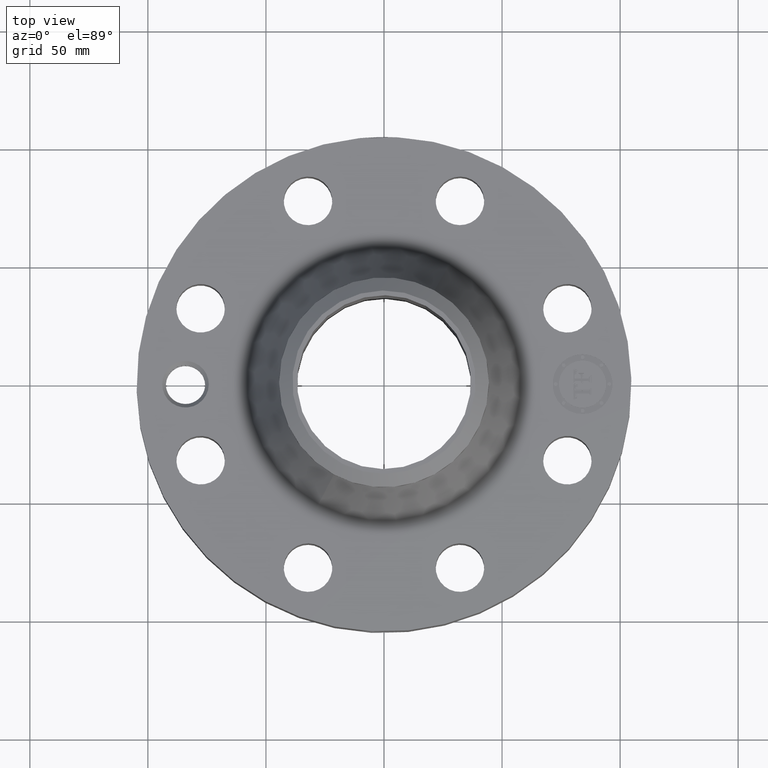
[diagram: clean part render]
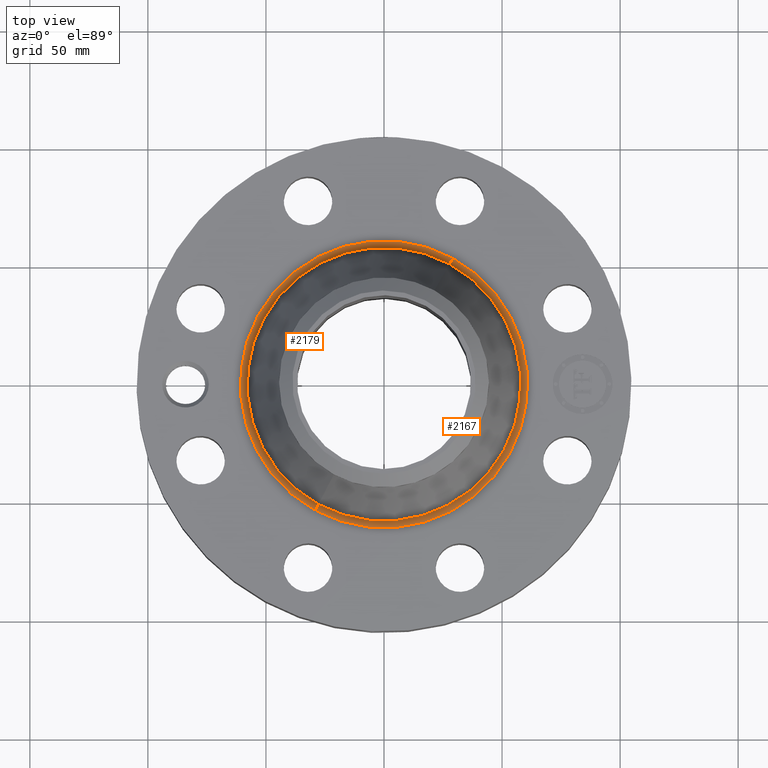
[diagram: same view with one multi-face feature highlighted, each face labeled with its STEP entity id]
A machine part, top view. The highlighted faces form ONE feature: a constant-radius fillet chain: 2 tangent blend faces with common blend radius 3.048 mm. The faces share edges in the B-rep.
Their STEP definitions:
[1] entity #2167 (Torus):
#568=AXIS2_PLACEMENT_3D('Circle Axis2P3D',#566,#567,$) ;
#2140=AXIS2_PLACEMENT_3D('Torus Axis2P3D',#2137,#2138,#2139) ;
#2144=AXIS2_PLACEMENT_3D('Circle Axis2P3D',#2142,#2143,$) ;
#2151=AXIS2_PLACEMENT_3D('Circle Axis2P3D',#2149,#2150,$) ;
#2158=AXIS2_PLACEMENT_3D('Circle Axis2P3D',#2156,#2157,$) ;
#561=CARTESIAN_POINT('Vertex',(-1.1482394859,-2.10183828052,1.56000000001)) ;
#563=CARTESIAN_POINT('Vertex',(1.1482394859,2.10183828052,1.56000000001)) ;
#566=CARTESIAN_POINT('Axis2P3D Location',(0.,0.,1.56000000001)) ;
#2137=CARTESIAN_POINT('Axis2P3D Location',(0.,0.,1.68000000001)) ;
#2142=CARTESIAN_POINT('Axis2P3D Location',(1.1482394859,2.10183828052,1.68000000001)) ;
#2146=CARTESIAN_POINT('Vertex',(1.09396064071,2.00248152086,1.64022511755)) ;
#2149=CARTESIAN_POINT('Axis2P3D Location',(0.,0.,1.64022511755)) ;
#2153=CARTESIAN_POINT('Vertex',(-1.09396064071,-2.00248152086,1.64022511755)) ;
#2156=CARTESIAN_POINT('Axis2P3D Location',(-1.1482394859,-2.10183828052,1.68000000001)) ;
#567=DIRECTION('Axis2P3D Direction',(0.,0.,-0.0393700787402)) ;
#2138=DIRECTION('Axis2P3D Direction',(0.,0.,-0.0393700787402)) ;
#2139=DIRECTION('Axis2P3D XDirection',(-0.0188750212049,-0.0345504945626,0.)) ;
#2143=DIRECTION('Axis2P3D Direction',(-0.0345504945626,0.0188750212049,0.)) ;
#2150=DIRECTION('Axis2P3D Direction',(0.,0.,-0.0393700787402)) ;
#2157=DIRECTION('Axis2P3D Direction',(0.0345504945626,-0.0188750212049,0.)) ;
#2162=ORIENTED_EDGE('',*,*,#570,.F.) ;
#2163=ORIENTED_EDGE('',*,*,#2148,.T.) ;
#2164=ORIENTED_EDGE('',*,*,#2155,.T.) ;
#2165=ORIENTED_EDGE('',*,*,#2160,.F.) ;
#2167=ADVANCED_FACE('PartBody',(#2166),#2141,.F.) ;
#569=CIRCLE('generated circle',#568,2.39503195688) ;
#2145=CIRCLE('generated circle',#2144,0.12) ;
#2152=CIRCLE('generated circle',#2151,2.2818155326) ;
#2159=CIRCLE('generated circle',#2158,0.12) ;
#2141=TOROIDAL_SURFACE('homeo Torus',#2140,2.39503195688,0.12) ;
#570=EDGE_CURVE('',#564,#562,#569,.T.) ;
#2148=EDGE_CURVE('',#564,#2147,#2145,.T.) ;
#2155=EDGE_CURVE('',#2147,#2154,#2152,.T.) ;
#2160=EDGE_CURVE('',#562,#2154,#2159,.T.) ;
#2161=EDGE_LOOP('',(#2162,#2163,#2164,#2165)) ;
#2166=FACE_OUTER_BOUND('',#2161,.T.) ;
#562=VERTEX_POINT('',#561) ;
#564=VERTEX_POINT('',#563) ;
#2147=VERTEX_POINT('',#2146) ;
#2154=VERTEX_POINT('',#2153) ;
[2] entity #2179 (Torus):
#559=AXIS2_PLACEMENT_3D('Circle Axis2P3D',#557,#558,$) ;
#2140=AXIS2_PLACEMENT_3D('Torus Axis2P3D',#2137,#2138,#2139) ;
#2144=AXIS2_PLACEMENT_3D('Circle Axis2P3D',#2142,#2143,$) ;
#2158=AXIS2_PLACEMENT_3D('Circle Axis2P3D',#2156,#2157,$) ;
#2170=AXIS2_PLACEMENT_3D('Circle Axis2P3D',#2168,#2169,$) ;
#557=CARTESIAN_POINT('Axis2P3D Location',(0.,0.,1.56000000001)) ;
#561=CARTESIAN_POINT('Vertex',(-1.1482394859,-2.10183828052,1.56000000001)) ;
#563=CARTESIAN_POINT('Vertex',(1.1482394859,2.10183828052,1.56000000001)) ;
#2137=CARTESIAN_POINT('Axis2P3D Location',(0.,0.,1.68000000001)) ;
#2142=CARTESIAN_POINT('Axis2P3D Location',(1.1482394859,2.10183828052,1.68000000001)) ;
#2146=CARTESIAN_POINT('Vertex',(1.09396064071,2.00248152086,1.64022511755)) ;
#2153=CARTESIAN_POINT('Vertex',(-1.09396064071,-2.00248152086,1.64022511755)) ;
#2156=CARTESIAN_POINT('Axis2P3D Location',(-1.1482394859,-2.10183828052,1.68000000001)) ;
#2168=CARTESIAN_POINT('Axis2P3D Location',(0.,0.,1.64022511755)) ;
#558=DIRECTION('Axis2P3D Direction',(0.,0.,-0.0393700787402)) ;
#2138=DIRECTION('Axis2P3D Direction',(0.,0.,-0.0393700787402)) ;
#2139=DIRECTION('Axis2P3D XDirection',(-0.0188750212049,-0.0345504945626,0.)) ;
#2143=DIRECTION('Axis2P3D Direction',(-0.0345504945626,0.0188750212049,0.)) ;
#2157=DIRECTION('Axis2P3D Direction',(0.0345504945626,-0.0188750212049,0.)) ;
#2169=DIRECTION('Axis2P3D Direction',(0.,0.,-0.0393700787402)) ;
#2174=ORIENTED_EDGE('',*,*,#565,.F.) ;
#2175=ORIENTED_EDGE('',*,*,#2160,.T.) ;
#2176=ORIENTED_EDGE('',*,*,#2172,.T.) ;
#2177=ORIENTED_EDGE('',*,*,#2148,.F.) ;
#2179=ADVANCED_FACE('PartBody',(#2178),#2141,.F.) ;
#560=CIRCLE('generated circle',#559,2.39503195688) ;
#2145=CIRCLE('generated circle',#2144,0.12) ;
#2159=CIRCLE('generated circle',#2158,0.12) ;
#2171=CIRCLE('generated circle',#2170,2.2818155326) ;
#2141=TOROIDAL_SURFACE('homeo Torus',#2140,2.39503195688,0.12) ;
#565=EDGE_CURVE('',#562,#564,#560,.T.) ;
#2148=EDGE_CURVE('',#564,#2147,#2145,.T.) ;
#2160=EDGE_CURVE('',#562,#2154,#2159,.T.) ;
#2172=EDGE_CURVE('',#2154,#2147,#2171,.T.) ;
#2173=EDGE_LOOP('',(#2174,#2175,#2176,#2177)) ;
#2178=FACE_OUTER_BOUND('',#2173,.T.) ;
#562=VERTEX_POINT('',#561) ;
#564=VERTEX_POINT('',#563) ;
#2147=VERTEX_POINT('',#2146) ;
#2154=VERTEX_POINT('',#2153) ;